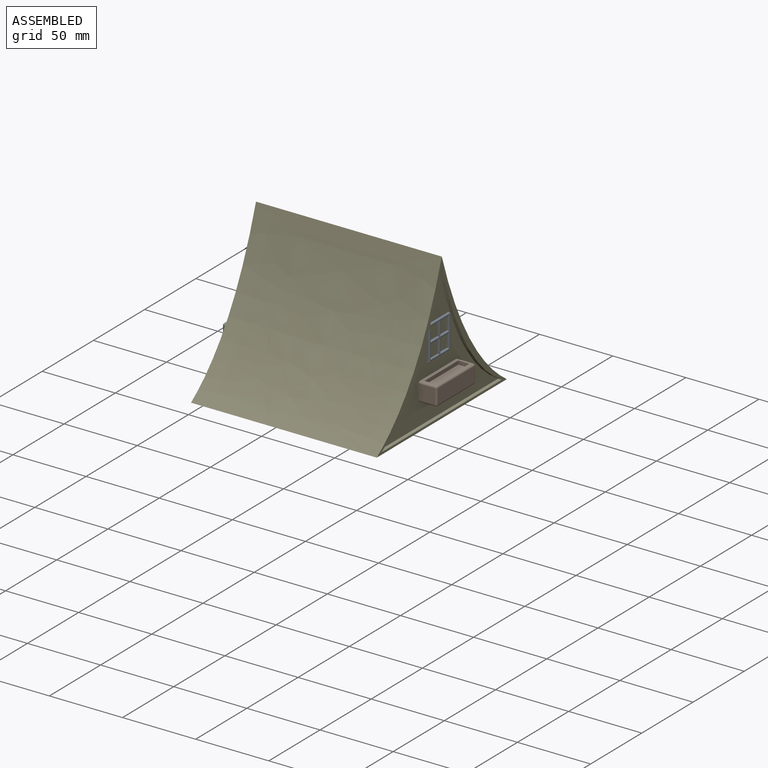
[diagram: assembled view]
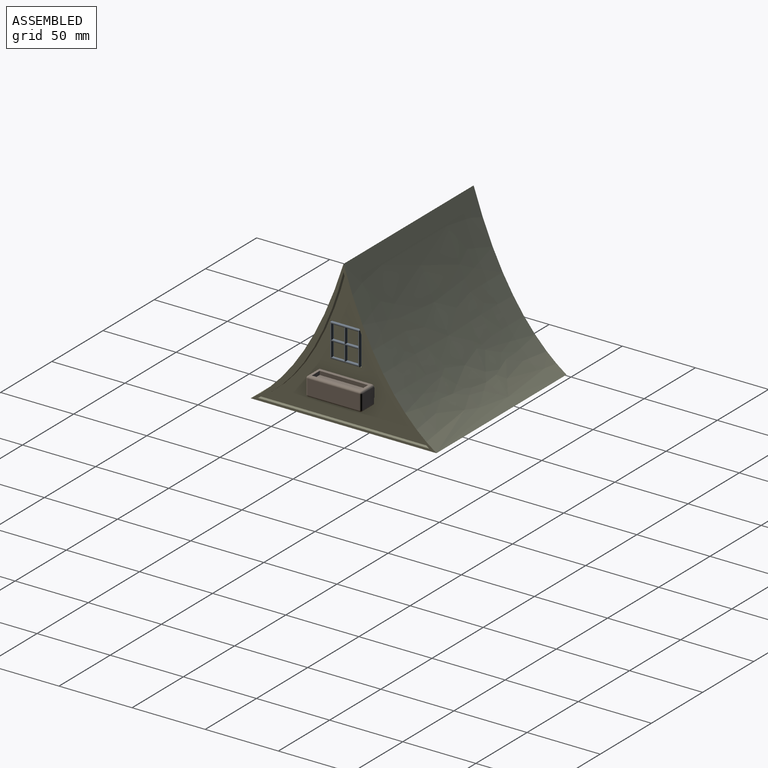
[diagram: assembled view, second angle]
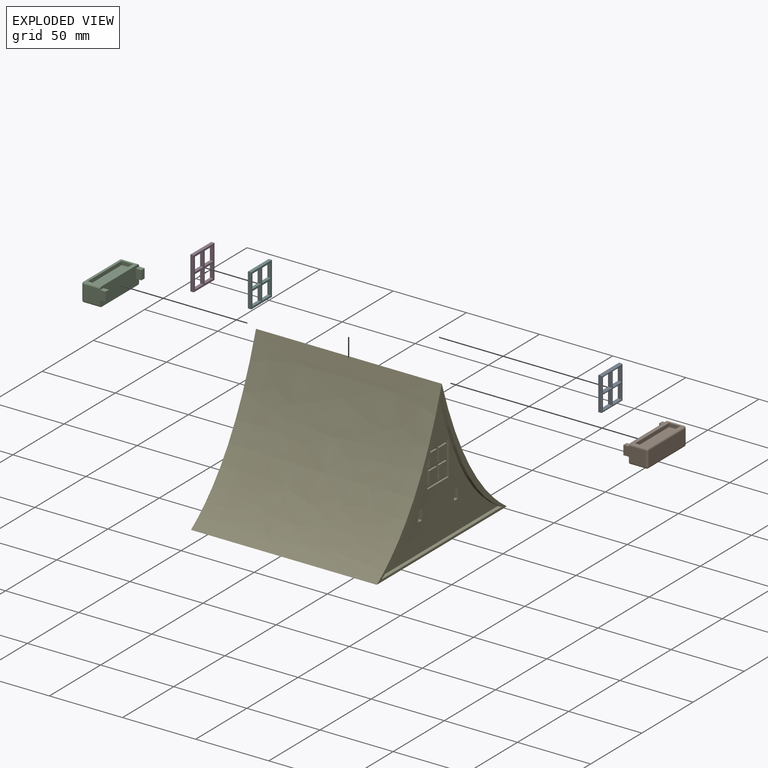
[diagram: exploded view]
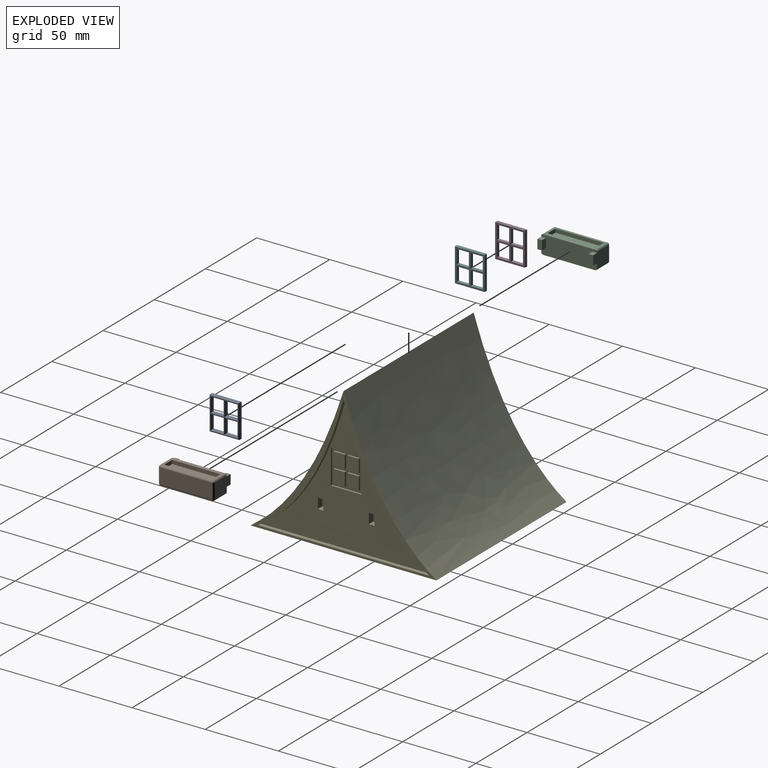
[diagram: exploded view, second angle]
ASSEMBLY  parts=6 mates=5
PART A: 42 faces, bbox 2.5x20.3x22.9 mm
  f0: plane 22.86x2.03mm, normal (0,-1,0), area 46.5mm2, adj f1,f19,f21,f39
  f1: plane 20.32x2.03mm, normal (0,0,1), area 41.3mm2, adj f0,f2,f21,f38
  f2: plane 22.86x2.03mm, normal (0,1,0), area 46.5mm2, adj f1,f19,f21,f40
  f3: plane 8.26x2.03mm, normal (0,0,1), area 16.8mm2, adj f4,f15,f21,f33
  f4: plane 9.53x2.03mm, normal (0,-1,0), area 19.4mm2, adj f3,f5,f21,f32
  f5: plane 8.26x2.03mm, normal (0,0,-1), area 16.8mm2, adj f4,f15,f21,f30
  f6: plane 9.53x2.03mm, normal (0,1,0), area 19.4mm2, adj f7,f16,f21,f23
  f7: plane 8.26x2.03mm, normal (0,0,1), area 16.8mm2, adj f6,f8,f21,f25
  f8: plane 9.53x2.03mm, normal (0,-1,0), area 19.4mm2, adj f7,f16,f21,f24
  f9: plane 9.53x2.03mm, normal (0,1,0), area 19.4mm2, adj f10,f17,f21,f27
  f10: plane 8.26x2.03mm, normal (0,0,1), area 16.8mm2, adj f9,f11,f21,f26
  f11: plane 9.53x2.03mm, normal (0,-1,0), area 19.4mm2, adj f10,f17,f21,f28
  f12: plane 8.26x2.03mm, normal (0,0,-1), area 16.8mm2, adj f13,f18,f21,f35
  f13: plane 9.53x2.03mm, normal (0,1,0), area 19.4mm2, adj f12,f14,f21,f34
  f14: plane 8.26x2.03mm, normal (0,0,1), area 16.8mm2, adj f13,f18,f21,f36
  f15: plane 9.53x2.03mm, normal (0,1,0), area 19.4mm2, adj f3,f5,f21,f31
  f16: plane 8.26x2.03mm, normal (0,0,-1), area 16.8mm2, adj f6,f8,f21,f22
  f17: plane 8.26x2.03mm, normal (0,0,-1), area 16.8mm2, adj f9,f11,f21,f29
  f18: plane 9.53x2.03mm, normal (0,-1,0), area 19.4mm2, adj f12,f14,f21,f37
  f19: plane 20.32x2.03mm, normal (0,0,-1), area 41.3mm2, adj f0,f2,f21,f41
  f20: plane 21.84x19.3mm, normal (-1,0,0), area 30.8mm2, adj f22,f23,f24,f25,f26,f27,f28,f29
  f21: plane 22.86x20.32mm, normal (1,0,0), area 150mm2, adj f0,f1,f2,f3,f4,f5,f6,f7
  f22: cylinder r=0.51mm len=9.27mm, axis (0,1,0), area 6.9mm2, adj f16,f20,f23,f24
  f23: cylinder r=0.51mm len=10.54mm, axis (0,0,1), area 7.9mm2, adj f6,f20,f22,f25
  f24: cylinder r=0.51mm len=10.54mm, axis (0,0,-1), area 7.9mm2, adj f8,f20,f22,f25
  f25: cylinder r=0.51mm len=9.27mm, axis (0,-1,0), area 6.9mm2, adj f7,f20,f23,f24
  f26: cylinder r=0.51mm len=9.27mm, axis (0,-1,0), area 6.9mm2, adj f10,f20,f27,f28
  f27: cylinder r=0.51mm len=10.54mm, axis (0,0,1), area 7.9mm2, adj f9,f20,f26,f29
  f28: cylinder r=0.51mm len=10.54mm, axis (0,0,-1), area 7.9mm2, adj f11,f20,f26,f29
  f29: cylinder r=0.51mm len=9.27mm, axis (0,1,0), area 6.9mm2, adj f17,f20,f27,f28
  f30: cylinder r=0.51mm len=9.27mm, axis (0,1,0), area 6.9mm2, adj f5,f20,f31,f32
  f31: cylinder r=0.51mm len=10.54mm, axis (0,0,1), area 7.9mm2, adj f15,f20,f30,f33
  f32: cylinder r=0.51mm len=10.54mm, axis (0,0,-1), area 7.9mm2, adj f4,f20,f30,f33
  f33: cylinder r=0.51mm len=9.27mm, axis (0,-1,0), area 6.9mm2, adj f3,f20,f31,f32
  f34: cylinder r=0.51mm len=10.54mm, axis (0,0,1), area 7.9mm2, adj f13,f20,f35,f36
  f35: cylinder r=0.51mm len=9.27mm, axis (0,1,0), area 6.9mm2, adj f12,f20,f34,f37
  f36: cylinder r=0.51mm len=9.27mm, axis (0,-1,0), area 6.9mm2, adj f14,f20,f34,f37
  f37: cylinder r=0.51mm len=10.54mm, axis (0,0,-1), area 7.9mm2, adj f18,f20,f35,f36
  f38: cylinder r=0.51mm len=20.32mm, axis (0,-1,0), area 15.9mm2, adj f1,f20,f39,f40
  f39: cylinder r=0.51mm len=22.86mm, axis (0,0,-1), area 17.9mm2, adj f0,f20,f38,f41
  f40: cylinder r=0.51mm len=22.86mm, axis (0,0,1), area 17.9mm2, adj f2,f20,f38,f41
  f41: cylinder r=0.51mm len=20.32mm, axis (0,1,0), area 15.9mm2, adj f19,f20,f39,f40
PART B: 31 faces, bbox 16.5x38.1x12.7 mm
  f0: plane 7.62x2.54mm, normal (0,-1,0), area 19.4mm2, adj f2,f8,f9,f10
  f1: plane 7.62x2.54mm, normal (0,1,0), area 19.4mm2, adj f2,f8,f9,f10
  f2: plane 35.52x11.41mm, normal (0,0,1), area 153.8mm2, adj f0,f1,f7,f8,f9,f16,f20,f22
  f3: plane 15.22x10.12mm, normal (0,1,0), area 139.7mm2, adj f7,f13,f19,f22,f23,f24,f26
  f4: plane 15.22x10.12mm, normal (0,-1,0), area 139.7mm2, adj f7,f11,f15,f16,f27,f28,f30
  f5: plane 35.52x11.41mm, normal (0,0,-1), area 405.4mm2, adj f7,f11,f13,f14
  f6: plane 35.52x10.12mm, normal (1,0,0), area 359.7mm2, adj f14,f15,f19,f20
  f7: plane 38.1x12.7mm, normal (-1,0,0), area 442.1mm2, adj f2,f3,f4,f5,f11,f13,f16,f22
  f8: plane 33.02x2.54mm, normal (-1,0,0), area 83.9mm2, adj f0,f1,f2,f10
  f9: plane 33.02x2.54mm, normal (1,0,0), area 83.9mm2, adj f0,f1,f2,f10
  f10: plane 33.02x7.62mm, normal (0,0,1), area 251.6mm2, adj f0,f1,f8,f9
  f11: cylinder r=1.29mm len=11.41mm, axis (1,0,0), area 23.1mm2, adj f4,f5,f7,f12
  f12: sphere r=1.29mm, area 2.6mm2, adj f11,f14,f15
  f13: cylinder r=1.29mm len=11.41mm, axis (-1,0,0), area 23.1mm2, adj f3,f5,f7,f17
  f14: cylinder r=1.29mm len=35.52mm, axis (0,-1,0), area 71.9mm2, adj f5,f6,f12,f17
  f15: cylinder r=1.29mm len=10.12mm, axis (0,0,1), area 20.5mm2, adj f4,f6,f12,f18
  f16: cylinder r=1.29mm len=11.41mm, axis (-1,0,0), area 23.1mm2, adj f2,f4,f7,f18
  f17: sphere r=1.29mm, area 2.6mm2, adj f13,f14,f19
  f18: sphere r=1.29mm, area 2.6mm2, adj f15,f16,f20
  f19: cylinder r=1.29mm len=10.12mm, axis (0,0,-1), area 20.5mm2, adj f3,f6,f17,f21
  f20: cylinder r=1.29mm len=35.52mm, axis (0,1,0), area 71.9mm2, adj f2,f6,f18,f21
  f21: sphere r=1.29mm, area 2.6mm2, adj f19,f20,f22
  f22: cylinder r=1.29mm len=11.41mm, axis (1,0,0), area 23.1mm2, adj f2,f3,f7,f21
  f23: plane 3.81x3.18mm, normal (0,0,1), area 12.1mm2, adj f3,f7,f25,f26
  f24: plane 3.81x3.18mm, normal (0,0,-1), area 12.1mm2, adj f3,f7,f25,f26
  f25: plane 6.35x3.81mm, normal (0,-1,0), area 24.2mm2, adj f7,f23,f24,f26
  f26: plane 6.35x3.18mm, normal (-1,0,0), area 20.2mm2, adj f3,f23,f24,f25
  f27: plane 3.81x3.18mm, normal (0,0,-1), area 12.1mm2, adj f4,f7,f29,f30
  f28: plane 3.81x3.18mm, normal (0,0,1), area 12.1mm2, adj f4,f7,f29,f30
  f29: plane 6.35x3.81mm, normal (0,1,0), area 24.2mm2, adj f7,f27,f28,f30
  f30: plane 6.35x3.18mm, normal (-1,0,0), area 20.2mm2, adj f4,f27,f28,f29
PART C: same geometry as B
PART D: same geometry as A
PART E: 119 faces, bbox 127.1x127.1x100.1 mm
  f0: plane 127x127mm, normal (0,0,-1), area 4847.9mm2, adj f1,f2,f3,f4,f7,f8,f9,f10
  f1: plane 89.54x80.57mm, normal (1,0,0), area 3223.3mm2, adj f0,f3,f4,f88,f93,f95,f98
  f2: plane 89.53x80.57mm, normal (-1,0,0), area 3223.3mm2, adj f0,f3,f4,f90,f92,f96,f97
  f3: extruded ~109.22x80.57mm, area 10374.1mm2, adj f0,f1,f2,f4,f91,f92,f93,f94
  f4: extruded ~109.22x80.57mm, area 10374.1mm2, adj f0,f1,f2,f3,f87,f88,f89,f90
  f5: plane 117.31x93.39mm, normal (1,0,0), area 3358.8mm2, adj f14,f15,f16,f52,f53,f54,f55,f78
  f6: plane 117.31x93.39mm, normal (-1,0,0), area 3358.8mm2, adj f11,f12,f13,f17,f18,f19,f20,f43
  f7: plane 127x100mm, normal (-1,0,0), area 914.1mm2, adj f0,f8,f9,f11,f12,f13
  f8: extruded ~127x100mm, area 15318.3mm2, adj f0,f7,f9,f10
  f9: extruded ~127x100mm, area 15318.3mm2, adj f0,f7,f8,f10
  f10: plane 127x100mm, normal (1,0,0), area 914.1mm2, adj f0,f8,f9,f14,f15,f16
  f11: extruded ~93.39x58.66mm, area 287.3mm2, adj f6,f7,f12,f13
  f12: plane 117.31x2.54mm, normal (0,0,1), area 298mm2, adj f6,f7,f11,f13
  f13: extruded ~93.39x58.66mm, area 287.3mm2, adj f6,f7,f11,f12
  f14: extruded ~93.39x58.66mm, area 287.3mm2, adj f5,f10,f15,f16
  f15: extruded ~93.39x58.66mm, area 287.3mm2, adj f5,f10,f14,f16
  f16: plane 117.31x2.54mm, normal (0,0,1), area 298mm2, adj f5,f10,f14,f15
  f17: plane 20.92x1.27mm, normal (0,0,1), area 26.6mm2, adj f6,f18,f20,f23
  f18: plane 23.46x1.27mm, normal (0,1,0), area 29.8mm2, adj f6,f17,f19,f23
  f19: plane 20.92x1.27mm, normal (0,0,-1), area 26.6mm2, adj f6,f18,f20,f23
  f20: plane 23.46x1.27mm, normal (0,-1,0), area 29.8mm2, adj f6,f17,f19,f23
  f21: plane 9.23x7.66mm, normal (-1,0,0), area 70.6mm2, adj f22,f24,f25,f26
  f22: plane 7.66x1.27mm, normal (0,0,-1), area 9.7mm2, adj f21,f23,f24,f26
  f23: plane 23.46x20.92mm, normal (-1,0,0), area 215.2mm2, adj f17,f18,f19,f20,f22,f24,f25,f26
  f24: plane 9.23x1.27mm, normal (0,1,0), area 11.7mm2, adj f21,f22,f23,f25
  f25: plane 7.66x1.27mm, normal (0,0,1), area 9.7mm2, adj f21,f23,f24,f26
  f26: plane 9.23x1.27mm, normal (0,-1,0), area 11.7mm2, adj f21,f22,f23,f25
  f27: plane 7.66x1.27mm, normal (0,0,1), area 9.7mm2, adj f23,f28,f30,f39
  f28: plane 8.93x1.27mm, normal (0,-1,0), area 11.3mm2, adj f23,f27,f29,f39
  f29: plane 7.66x1.27mm, normal (0,0,-1), area 9.7mm2, adj f23,f28,f30,f39
  f30: plane 8.93x1.27mm, normal (0,1,0), area 11.3mm2, adj f23,f27,f29,f39
  f31: plane 7.66x1.27mm, normal (0,0,-1), area 9.7mm2, adj f23,f32,f34,f40
  f32: plane 8.93x1.27mm, normal (0,1,0), area 11.3mm2, adj f23,f31,f33,f40
  f33: plane 7.66x1.27mm, normal (0,0,1), area 9.7mm2, adj f23,f32,f34,f40
  f34: plane 8.93x1.27mm, normal (0,-1,0), area 11.3mm2, adj f23,f31,f33,f40
  f35: plane 8.93x1.27mm, normal (0,-1,0), area 11.3mm2, adj f23,f36,f38,f41
  f36: plane 7.66x1.27mm, normal (0,0,-1), area 9.7mm2, adj f23,f35,f37,f41
  f37: plane 8.93x1.27mm, normal (0,1,0), area 11.3mm2, adj f23,f36,f38,f41
  f38: plane 7.66x1.27mm, normal (0,0,1), area 9.7mm2, adj f23,f35,f37,f41
  f39: plane 8.93x7.66mm, normal (-1,0,0), area 68.3mm2, adj f27,f28,f29,f30
  f40: plane 8.93x7.66mm, normal (-1,0,0), area 68.3mm2, adj f31,f32,f33,f34
  f41: plane 8.93x7.66mm, normal (-1,0,0), area 68.3mm2, adj f35,f36,f37,f38
  f42: plane 6.95x3.78mm, normal (-1,0,0), area 26.2mm2, adj f43,f44,f45,f46
  f43: plane 4.11x3.78mm, normal (0,0,1), area 15.5mm2, adj f6,f42,f45,f46
  f44: plane 4.11x3.78mm, normal (0,0,-1), area 15.5mm2, adj f6,f42,f45,f46
  f45: plane 6.95x4.11mm, normal (0,1,0), area 28.6mm2, adj f6,f42,f43,f44
  f46: plane 6.95x4.11mm, normal (0,-1,0), area 28.6mm2, adj f6,f42,f43,f44
  f47: plane 4.11x3.78mm, normal (0,0,-1), area 15.5mm2, adj f6,f48,f49,f51
  f48: plane 6.95x4.11mm, normal (0,1,0), area 28.6mm2, adj f6,f47,f50,f51
  f49: plane 6.95x4.11mm, normal (0,-1,0), area 28.6mm2, adj f6,f47,f50,f51
  f50: plane 4.11x3.78mm, normal (0,0,1), area 15.5mm2, adj f6,f48,f49,f51
  f51: plane 6.95x3.78mm, normal (-1,0,0), area 26.2mm2, adj f47,f48,f49,f50
  f52: plane 20.92x1.27mm, normal (0,0,1), area 26.6mm2, adj f5,f53,f55,f58
  f53: plane 23.46x1.27mm, normal (0,1,0), area 29.8mm2, adj f5,f52,f54,f58
  f54: plane 20.92x1.27mm, normal (0,0,-1), area 26.6mm2, adj f5,f53,f55,f58
  f55: plane 23.46x1.27mm, normal (0,-1,0), area 29.8mm2, adj f5,f52,f54,f58
  f56: plane 9.23x7.66mm, normal (1,0,0), area 70.6mm2, adj f57,f59,f60,f61
  f57: plane 7.66x1.27mm, normal (0,0,-1), area 9.7mm2, adj f56,f58,f59,f61
  f58: plane 23.46x20.92mm, normal (1,0,0), area 215.2mm2, adj f52,f53,f54,f55,f57,f59,f60,f61
  f59: plane 9.23x1.27mm, normal (0,1,0), area 11.7mm2, adj f56,f57,f58,f60
  f60: plane 7.66x1.27mm, normal (0,0,1), area 9.7mm2, adj f56,f58,f59,f61
  f61: plane 9.23x1.27mm, normal (0,-1,0), area 11.7mm2, adj f56,f57,f58,f60
  f62: plane 7.66x1.27mm, normal (0,0,1), area 9.7mm2, adj f58,f63,f65,f74
  f63: plane 8.93x1.27mm, normal (0,-1,0), area 11.3mm2, adj f58,f62,f64,f74
  f64: plane 7.66x1.27mm, normal (0,0,-1), area 9.7mm2, adj f58,f63,f65,f74
  f65: plane 8.93x1.27mm, normal (0,1,0), area 11.3mm2, adj f58,f62,f64,f74
  f66: plane 7.66x1.27mm, normal (0,0,-1), area 9.7mm2, adj f58,f67,f69,f75
  f67: plane 8.93x1.27mm, normal (0,1,0), area 11.3mm2, adj f58,f66,f68,f75
  f68: plane 7.66x1.27mm, normal (0,0,1), area 9.7mm2, adj f58,f67,f69,f75
  f69: plane 8.93x1.27mm, normal (0,-1,0), area 11.3mm2, adj f58,f66,f68,f75
  f70: plane 8.93x1.27mm, normal (0,-1,0), area 11.3mm2, adj f58,f71,f73,f76
  f71: plane 7.66x1.27mm, normal (0,0,-1), area 9.7mm2, adj f58,f70,f72,f76
  f72: plane 8.93x1.27mm, normal (0,1,0), area 11.3mm2, adj f58,f71,f73,f76
  f73: plane 7.66x1.27mm, normal (0,0,1), area 9.7mm2, adj f58,f70,f72,f76
  f74: plane 8.93x7.66mm, normal (1,0,0), area 68.3mm2, adj f62,f63,f64,f65
  f75: plane 8.93x7.66mm, normal (1,0,0), area 68.3mm2, adj f66,f67,f68,f69
  f76: plane 8.93x7.66mm, normal (1,0,0), area 68.3mm2, adj f70,f71,f72,f73
  f77: plane 6.95x3.78mm, normal (1,0,0), area 26.2mm2, adj f78,f79,f80,f81
  f78: plane 4.11x3.78mm, normal (0,0,1), area 15.5mm2, adj f5,f77,f80,f81
  f79: plane 4.11x3.78mm, normal (0,0,-1), area 15.5mm2, adj f5,f77,f80,f81
  f80: plane 6.95x4.11mm, normal (0,1,0), area 28.6mm2, adj f5,f77,f78,f79
  f81: plane 6.95x4.11mm, normal (0,-1,0), area 28.6mm2, adj f5,f77,f78,f79
  f82: plane 4.11x3.78mm, normal (0,0,-1), area 15.5mm2, adj f5,f83,f84,f86
  f83: plane 6.95x4.11mm, normal (0,1,0), area 28.6mm2, adj f5,f82,f85,f86
  f84: plane 6.95x4.11mm, normal (0,-1,0), area 28.6mm2, adj f5,f82,f85,f86
  f85: plane 4.11x3.78mm, normal (0,0,1), area 15.5mm2, adj f5,f83,f84,f86
  f86: plane 6.95x3.78mm, normal (1,0,0), area 26.2mm2, adj f82,f83,f84,f85
  f87: plane 19.12x7.19mm, normal (1,0,0), area 105.9mm2, adj f0,f4,f88,f95
  f88: plane 12.7x10.97mm, normal (0,0,1), area 139.3mm2, adj f1,f4,f87,f95
  f89: plane 19.12x7.19mm, normal (-1,0,0), area 105.9mm2, adj f0,f4,f90,f96
  f90: plane 12.7x10.97mm, normal (0,0,1), area 139.3mm2, adj f2,f4,f89,f96
  f91: plane 19.12x7.19mm, normal (-1,0,0), area 105.9mm2, adj f0,f3,f92,f97
  f92: plane 12.7x10.97mm, normal (0,0,1), area 139.3mm2, adj f2,f3,f91,f97
  f93: plane 12.7x10.97mm, normal (0,0,1), area 139.3mm2, adj f1,f3,f94,f98
  f94: plane 19.12x7.19mm, normal (1,0,0), area 105.9mm2, adj f0,f3,f93,f98
  f95: plane 12.7x7.11mm, normal (0,1,0), area 90.3mm2, adj f0,f1,f87,f88
  f96: plane 12.7x7.11mm, normal (0,1,0), area 90.3mm2, adj f0,f2,f89,f90
  f97: plane 12.7x7.11mm, normal (0,-1,0), area 90.3mm2, adj f0,f2,f91,f92
  f98: plane 12.7x7.11mm, normal (0,-1,0), area 90.3mm2, adj f0,f1,f93,f94
  f99: plane 13.3x6.35mm, normal (0,1,0), area 84.5mm2, adj f0,f101,f102,f116
  f100: plane 13.3x6.35mm, normal (0,-1,0), area 84.5mm2, adj f0,f101,f102,f116
  f101: plane 13.3x6.35mm, normal (1,0,0), area 84.5mm2, adj f0,f99,f100,f116
  f102: plane 13.3x6.35mm, normal (-1,0,0), area 84.5mm2, adj f0,f99,f100,f116
  f103: plane 13.3x6.35mm, normal (-1,0,0), area 84.5mm2, adj f0,f104,f106,f115
  f104: plane 13.3x6.35mm, normal (0,-1,0), area 84.5mm2, adj f0,f103,f105,f115
  f105: plane 13.3x6.35mm, normal (1,0,0), area 84.5mm2, adj f0,f104,f106,f115
  f106: plane 13.3x6.35mm, normal (0,1,0), area 84.5mm2, adj f0,f103,f105,f115
  f107: plane 13.3x6.35mm, normal (1,0,0), area 84.5mm2, adj f0,f108,f110,f118
  f108: plane 13.3x6.35mm, normal (0,1,0), area 84.5mm2, adj f0,f107,f109,f118
  f109: plane 13.3x6.35mm, normal (-1,0,0), area 84.5mm2, adj f0,f108,f110,f118
  f110: plane 13.3x6.35mm, normal (0,-1,0), area 84.5mm2, adj f0,f107,f109,f118
  f111: plane 13.3x6.35mm, normal (0,-1,0), area 84.5mm2, adj f0,f112,f113,f117
  f112: plane 13.3x6.35mm, normal (1,0,0), area 84.5mm2, adj f0,f111,f114,f117
  f113: plane 13.3x6.35mm, normal (-1,0,0), area 84.5mm2, adj f0,f111,f114,f117
  f114: plane 13.3x6.35mm, normal (0,1,0), area 84.5mm2, adj f0,f112,f113,f117
  f115: plane 13.3x13.3mm, normal (0,0,-1), area 176.9mm2, adj f103,f104,f105,f106
  f116: plane 13.3x13.3mm, normal (0,0,-1), area 176.9mm2, adj f99,f100,f101,f102
  f117: plane 13.3x13.3mm, normal (0,0,-1), area 176.9mm2, adj f111,f112,f113,f114
  f118: plane 13.3x13.3mm, normal (0,0,-1), area 176.9mm2, adj f107,f108,f109,f110
PART F: same geometry as A
PLACE A rot(axis=(0,1,0),180deg) t=(119.83,83.47,52.29)mm
PLACE B t=(116.99,83.42,25.65)mm
PLACE C rot(axis=(0,0,1),180deg) t=(-4.33,83.42,25.65)mm
PLACE D t=(-7.17,83.47,52.29)mm
PLACE E t=(-7.17,83.42,52.18)mm
PLACE F t=(-7.17,83.47,52.29)mm
MATE fastened B.f30 <-> E.f77  axis (-1,0,0) through (113.18,65.95,27.1)mm
MATE fastened F.f21 <-> E.f23  axis (1,0,0) through (-3.36,83.47,52.29)mm
MATE fastened C.f30 <-> E.f51  axis (1,0,0) through (-0.52,100.88,27.1)mm
MATE fastened D.f21 <-> F.f21  axis (1,0,0) through (-3.36,83.47,52.29)mm
MATE fastened A.f21 <-> E.f58  axis (-1,0,0) through (116.02,83.47,52.29)mm
